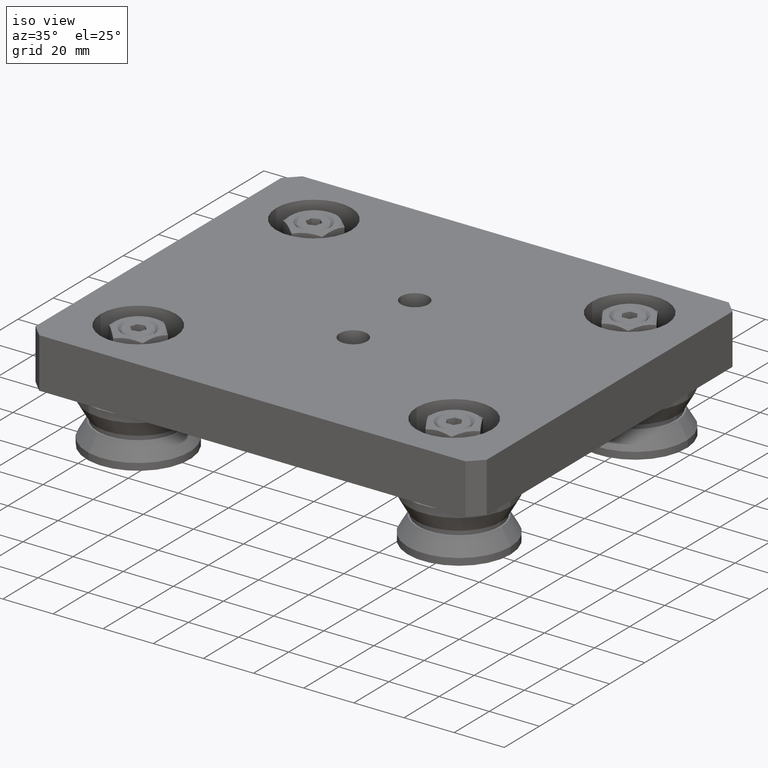
[diagram: clean part render]
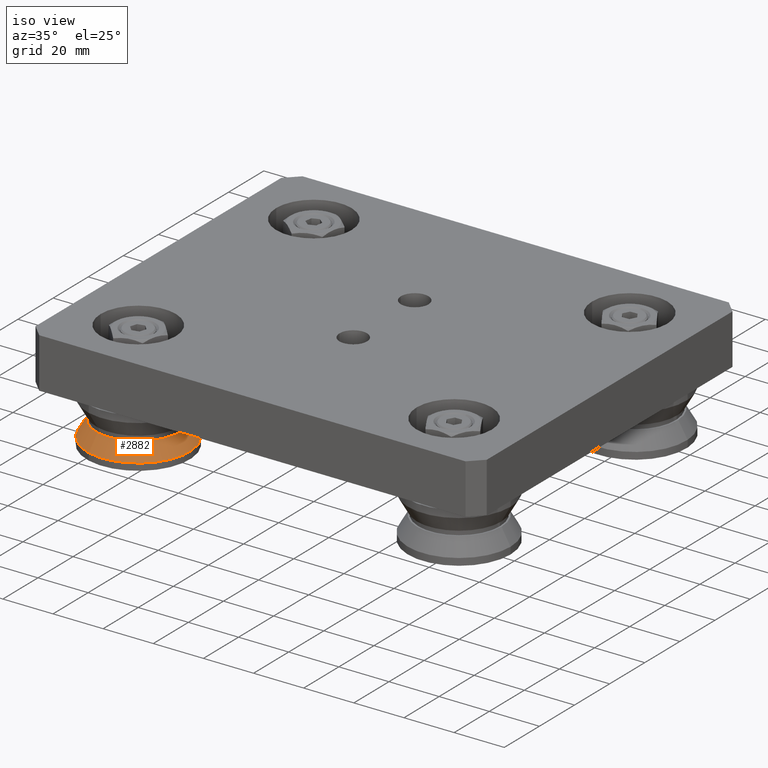
[diagram: same view with one face highlighted and labeled with its STEP entity id]
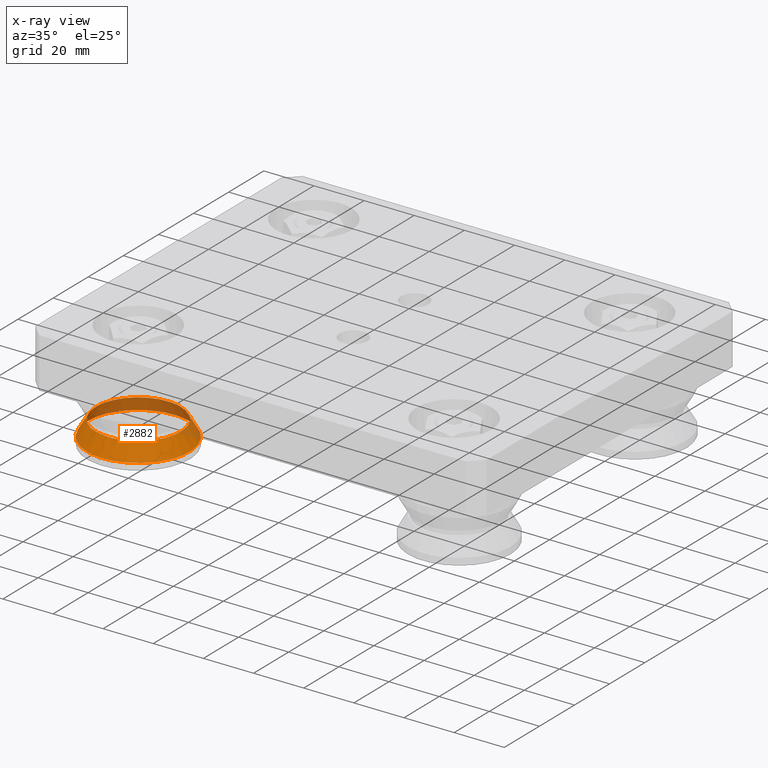
[diagram: x-ray of the same camera — body ghosted, the highlighted face saturated]
A machine part, iso view. The second image highlights one B-rep face of the part: STEP entity #2882.
The next image is the same camera in x-ray: the body ghosted, the highlighted face saturated — about 33% of this face is hidden behind the body in this view.
In plain terms, the highlighted conical surface has half-angle 30 deg.
Its self-contained STEP definition (entity closure, byte-faithful):
#107=CONICAL_SURFACE('',#3374,18.6957804087824,0.523598775598299);
#363=CIRCLE('',#3373,20.5);
#364=CIRCLE('',#3375,16.8915608175648);
#543=FACE_OUTER_BOUND('',#757,.T.);
#757=EDGE_LOOP('',(#2390,#2391,#2392,#2393));
#986=LINE('',#4986,#1199);
#1199=VECTOR('',#4117,18.6957804087824);
#1411=VERTEX_POINT('',#4980);
#1412=VERTEX_POINT('',#4984);
#1747=EDGE_CURVE('',#1411,#1411,#363,.T.);
#1749=EDGE_CURVE('',#1412,#1412,#364,.T.);
#1750=EDGE_CURVE('',#1412,#1411,#986,.T.);
#2390=ORIENTED_EDGE('',*,*,#1749,.F.);
#2391=ORIENTED_EDGE('',*,*,#1750,.T.);
#2392=ORIENTED_EDGE('',*,*,#1747,.T.);
#2393=ORIENTED_EDGE('',*,*,#1750,.F.);
#2882=ADVANCED_FACE('',(#543),#107,.T.);
#3373=AXIS2_PLACEMENT_3D('',#4981,#4110,#4111);
#3374=AXIS2_PLACEMENT_3D('',#4983,#4113,#4114);
#3375=AXIS2_PLACEMENT_3D('',#4985,#4115,#4116);
#4110=DIRECTION('center_axis',(1.,0.,0.));
#4111=DIRECTION('ref_axis',(0.,1.,0.));
#4113=DIRECTION('center_axis',(-1.,0.,0.));
#4114=DIRECTION('ref_axis',(0.,1.,0.));
#4115=DIRECTION('center_axis',(1.,0.,0.));
#4116=DIRECTION('ref_axis',(0.,1.,0.));
#4117=DIRECTION('',(-0.866025403784438,-0.5,-6.12323399573677E-17));
#4980=CARTESIAN_POINT('',(-7.2,-20.5,-2.51052593825207E-15));
#4981=CARTESIAN_POINT('Origin',(-7.2,0.,0.));
#4983=CARTESIAN_POINT('Origin',(-4.075,0.,0.));
#4984=CARTESIAN_POINT('',(-0.949999999999999,-16.8915608175648,-2.06861958878336E-15));
#4985=CARTESIAN_POINT('Origin',(-0.95,0.,0.));
#4986=CARTESIAN_POINT('',(-4.075,-18.6957804087824,-2.28957276351772E-15));